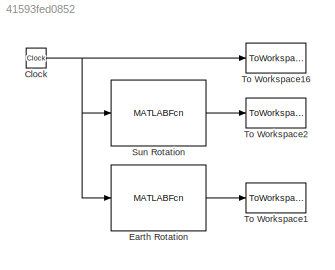
MODEL slx_41593fed0852
KIND model
BLOCK [Clock] Clock
BLOCK [MATLABFcn] Earth Rotation
  MATLABFcn = earth_rotation
  Output1D = off
  OutputDimensions = [3,3]
  Ports = [1, 1]
BLOCK [MATLABFcn] Sun Rotation
  MATLABFcn = sun_rotation
  Output1D = off
  OutputDimensions = [3,1]
  Ports = [1, 1]
BLOCK [ToWorkspace] To Workspace1
  FixptAsFi = on
  MaxDataPoints = inf
  Ports = [1]
  SampleTime = dt
  Save2DSignal = 3-D array (concatenate along third dimension)
  VariableName = R_E_I
BLOCK [ToWorkspace] To Workspace16
  FixptAsFi = on
  MaxDataPoints = inf
  Ports = [1]
  SampleTime = dt
  Save2DSignal = 3-D array (concatenate along third dimension)
  VariableName = tout
BLOCK [ToWorkspace] To Workspace2
  FixptAsFi = on
  MaxDataPoints = inf
  Ports = [1]
  SampleTime = dt
  Save2DSignal = 3-D array (concatenate along third dimension)
  VariableName = S_I
NET Clock:1 -> Earth Rotation:1, Sun Rotation:1, To Workspace16:1
LINE Earth Rotation:1 -> To Workspace1:1
LINE Sun Rotation:1 -> To Workspace2:1
note: NET lines group one-source signal fan-out (src -> all destinations, sorted); 1:1 wires keep LINE
